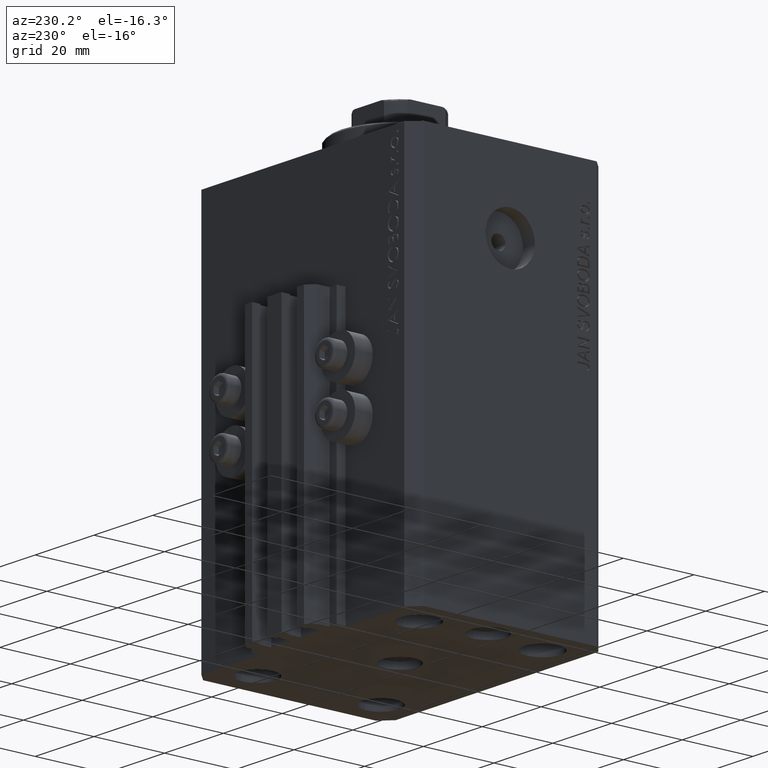
[diagram: clean part render]
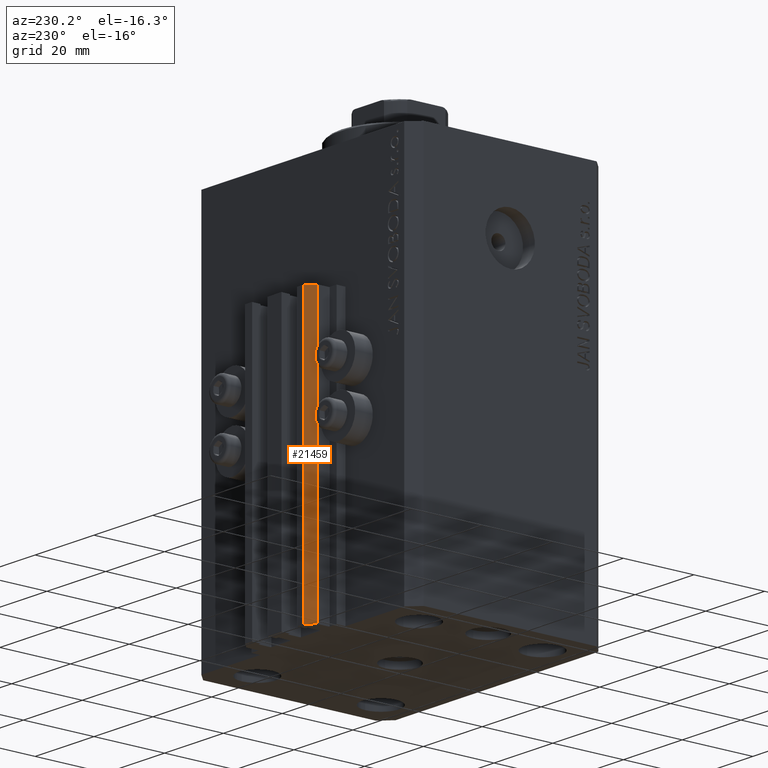
[diagram: same view with one face highlighted and labeled with its STEP entity id]
A machine part, auxiliary view. The second image highlights one B-rep face of the part: STEP entity #21459.
In plain terms, the highlighted planar face has unit normal (-0.7071, 0.7071, 0).
Its self-contained STEP definition (entity closure, byte-faithful):
#4041 = DIRECTION ( 'NONE',  ( -0.7071067811865490160, 0.7071067811865461294, 0.000000000000000000 ) ) ;
#4116 = ORIENTED_EDGE ( 'NONE', *, *, #31012, .F. ) ;
#4670 = ORIENTED_EDGE ( 'NONE', *, *, #9832, .F. ) ;
#5538 = CARTESIAN_POINT ( 'NONE',  ( -10.00000000000000000, 35.50000000000000000, -33.00000000000000000 ) ) ;
#5688 = VECTOR ( 'NONE', #46324, 1000.000000000000000 ) ;
#6252 = ORIENTED_EDGE ( 'NONE', *, *, #46127, .T. ) ;
#6581 = VERTEX_POINT ( 'NONE', #25717 ) ;
#7642 = CARTESIAN_POINT ( 'NONE',  ( -10.00000000000000000, 35.50000000000000000, -110.0000000000000000 ) ) ;
#7665 = ORIENTED_EDGE ( 'NONE', *, *, #40571, .T. ) ;
#8809 = AXIS2_PLACEMENT_3D ( 'NONE', #7642, #4041, #33243 ) ;
#8894 = DIRECTION ( 'NONE',  ( -0.7071067811865460184, -0.7071067811865490160, 0.000000000000000000 ) ) ;
#9534 = DIRECTION ( 'NONE',  ( 0.000000000000000000, 0.000000000000000000, 1.000000000000000000 ) ) ;
#9832 = EDGE_CURVE ( 'NONE', #40563, #6581, #28855, .T. ) ;
#13105 = VECTOR ( 'NONE', #37442, 1000.000000000000227 ) ;
#16019 = LINE ( 'NONE', #23217, #20767 ) ;
#19273 = CARTESIAN_POINT ( 'NONE',  ( -10.00000000000000000, 35.50000000000000000, -110.0000000000000000 ) ) ;
#20767 = VECTOR ( 'NONE', #9534, 1000.000000000000000 ) ;
#21445 = CARTESIAN_POINT ( 'NONE',  ( -10.00000000000000000, 35.50000000000000000, -110.0000000000000000 ) ) ;
#21459 = ADVANCED_FACE ( 'NONE', ( #39933 ), #33711, .T. ) ;
#22028 = VERTEX_POINT ( 'NONE', #39127 ) ;
#23217 = CARTESIAN_POINT ( 'NONE',  ( -12.00000000000000000, 33.49999999999998579, -110.0000000000000000 ) ) ;
#23282 = LINE ( 'NONE', #5538, #34181 ) ;
#25717 = CARTESIAN_POINT ( 'NONE',  ( -10.00000000000000000, 35.50000000000000000, -33.00000000000000000 ) ) ;
#25779 = VERTEX_POINT ( 'NONE', #27859 ) ;
#27859 = CARTESIAN_POINT ( 'NONE',  ( -12.00000000000000000, 33.49999999999998579, -110.0000000000000000 ) ) ;
#28855 = LINE ( 'NONE', #21445, #5688 ) ;
#31012 = EDGE_CURVE ( 'NONE', #6581, #22028, #23282, .T. ) ;
#33243 = DIRECTION ( 'NONE',  ( -0.7071067811865460184, -0.7071067811865489050, 0.000000000000000000 ) ) ;
#33711 = PLANE ( 'NONE',  #8809 ) ;
#34181 = VECTOR ( 'NONE', #8894, 1000.000000000000227 ) ;
#36269 = EDGE_LOOP ( 'NONE', ( #4116, #4670, #7665, #6252 ) ) ;
#37442 = DIRECTION ( 'NONE',  ( -0.7071067811865460184, -0.7071067811865490160, 0.000000000000000000 ) ) ;
#38145 = LINE ( 'NONE', #19273, #13105 ) ;
#39127 = CARTESIAN_POINT ( 'NONE',  ( -12.00000000000000000, 33.49999999999998579, -33.00000000000000000 ) ) ;
#39839 = CARTESIAN_POINT ( 'NONE',  ( -10.00000000000000000, 35.50000000000000000, -110.0000000000000000 ) ) ;
#39933 = FACE_OUTER_BOUND ( 'NONE', #36269, .T. ) ;
#40563 = VERTEX_POINT ( 'NONE', #39839 ) ;
#40571 = EDGE_CURVE ( 'NONE', #40563, #25779, #38145, .T. ) ;
#46127 = EDGE_CURVE ( 'NONE', #25779, #22028, #16019, .T. ) ;
#46324 = DIRECTION ( 'NONE',  ( 0.000000000000000000, 0.000000000000000000, 1.000000000000000000 ) ) ;